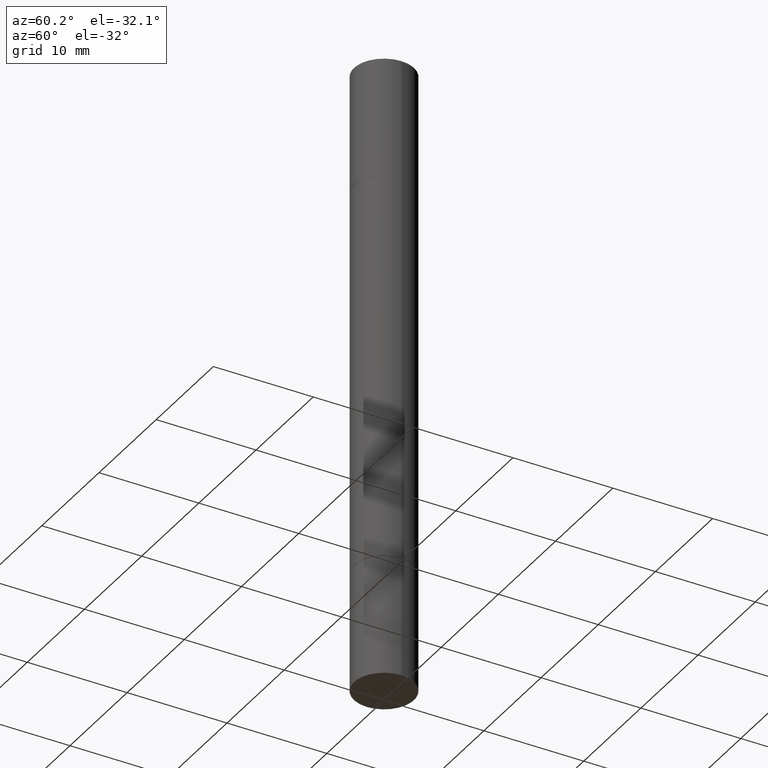
[diagram: clean part render]
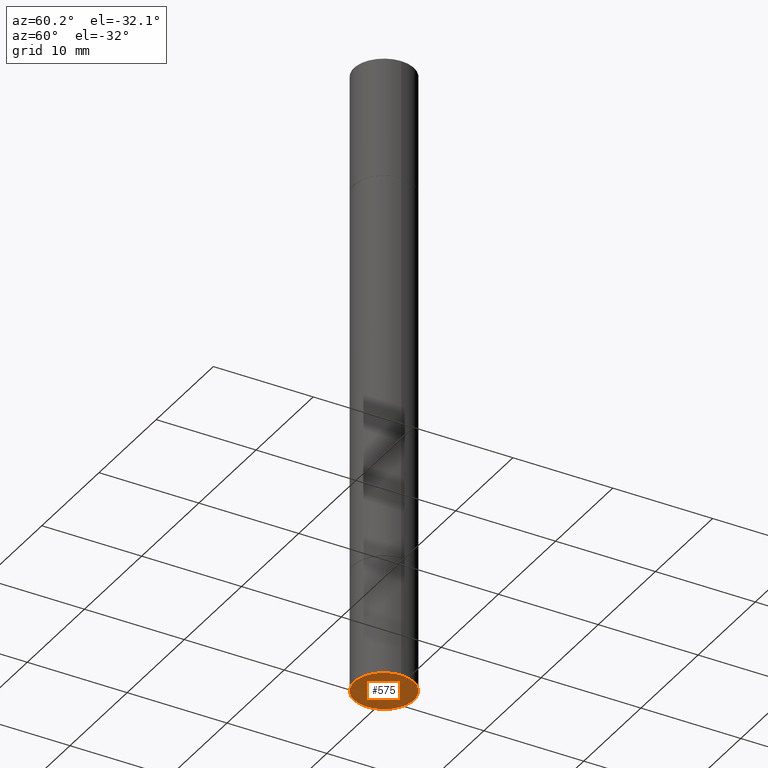
[diagram: same view with one face highlighted and labeled with its STEP entity id]
A machine part, auxiliary view. The second image highlights one B-rep face of the part: STEP entity #575.
In plain terms, the highlighted planar face has unit normal (0, -0, -1).
Its self-contained STEP definition (entity closure, byte-faithful):
#15 = DIRECTION ( 'NONE',  ( -2.445468806185136597E-29, 3.491481338843145583E-15, 1.000000000000000000 ) ) ;
#56 = CARTESIAN_POINT ( 'NONE',  ( 6.065496279980994755E-29, -8.659921164732655335E-15, -2.480300000000000171 ) ) ;
#142 = VERTEX_POINT ( 'NONE', #444 ) ;
#168 = DIRECTION ( 'NONE',  ( 2.438088387897960049E-29, -3.491481338843145188E-15, -1.000000000000000000 ) ) ;
#169 = PLANE ( 'NONE',  #429 ) ;
#177 = ORIENTED_EDGE ( 'NONE', *, *, #238, .F. ) ;
#186 = VERTEX_POINT ( 'NONE', #562 ) ;
#220 = CARTESIAN_POINT ( 'NONE',  ( 8.246878922348086105E-16, 0.1180999999999913369, -2.480300000000001059 ) ) ;
#238 = EDGE_CURVE ( 'NONE', #186, #142, #602, .T. ) ;
#244 = CIRCLE ( 'NONE', #518, 0.1180999999999999966 ) ;
#318 = DIRECTION ( 'NONE',  ( 1.000000000000000000, -6.982962677686273021E-15, 0.000000000000000000 ) ) ;
#362 = AXIS2_PLACEMENT_3D ( 'NONE', #56, #15, #318 ) ;
#427 = DIRECTION ( 'NONE',  ( -2.445468806185136597E-29, 3.491481338843145583E-15, 1.000000000000000000 ) ) ;
#429 = AXIS2_PLACEMENT_3D ( 'NONE', #220, #168, #599 ) ;
#444 = CARTESIAN_POINT ( 'NONE',  ( 0.1180999999999999966, -9.484609056967403598E-15, -2.480300000000000171 ) ) ;
#461 = EDGE_CURVE ( 'NONE', #142, #186, #244, .T. ) ;
#477 = CARTESIAN_POINT ( 'NONE',  ( 6.065496279980994755E-29, -8.659921164732655335E-15, -2.480300000000000171 ) ) ;
#518 = AXIS2_PLACEMENT_3D ( 'NONE', #477, #427, #639 ) ;
#562 = CARTESIAN_POINT ( 'NONE',  ( -0.1180999999999999966, -6.996082301565225720E-15, -2.480300000000000171 ) ) ;
#575 = ADVANCED_FACE ( 'NONE', ( #595 ), #169, .T. ) ;
#595 = FACE_OUTER_BOUND ( 'NONE', #624, .T. ) ;
#599 = DIRECTION ( 'NONE',  ( -1.000000000000000000, 6.982962677686265922E-15, -4.876176775795935793E-29 ) ) ;
#602 = CIRCLE ( 'NONE', #362, 0.1180999999999999966 ) ;
#624 = EDGE_LOOP ( 'NONE', ( #658, #177 ) ) ;
#639 = DIRECTION ( 'NONE',  ( 1.000000000000000000, -6.982962677686273021E-15, 0.000000000000000000 ) ) ;
#658 = ORIENTED_EDGE ( 'NONE', *, *, #461, .F. ) ;